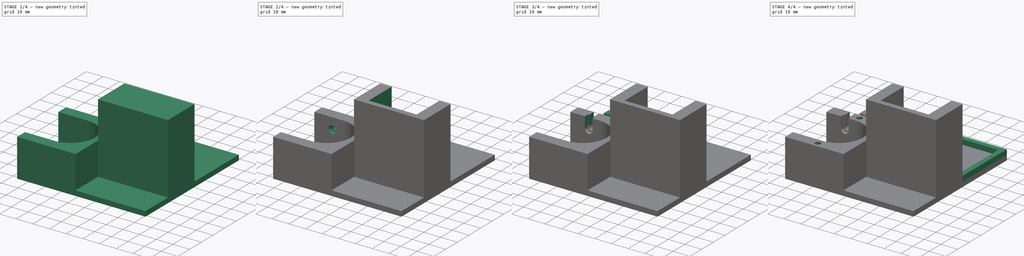
[diagram: build sequence overview — one tinted view per stage of 4, left to right]
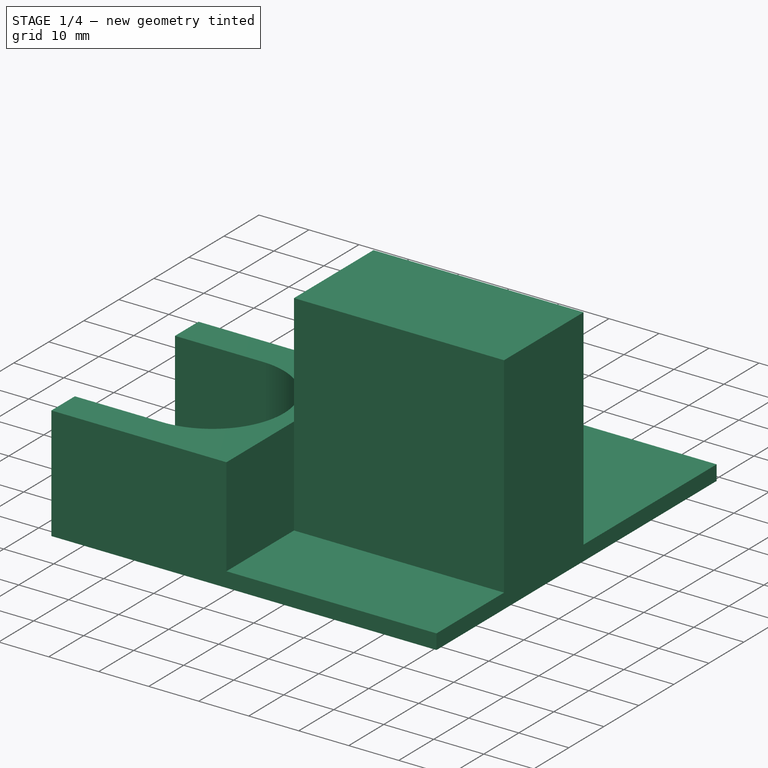
[diagram: stage 1 of 4 — iso view after this stage's code; geometry added in this stage tinted green]
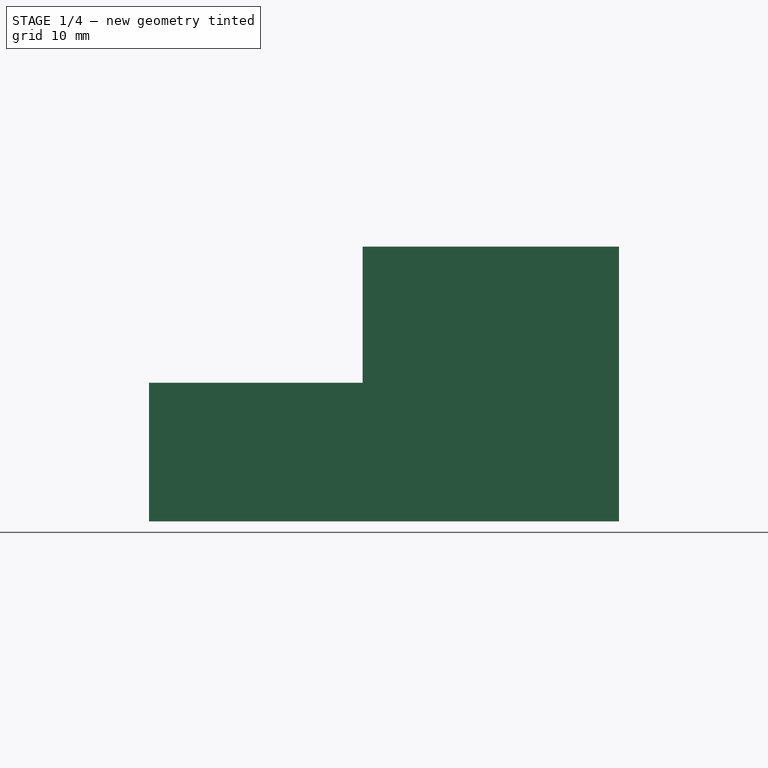
[diagram: stage 1 of 4 — front view after this stage's code; geometry added in this stage tinted green]
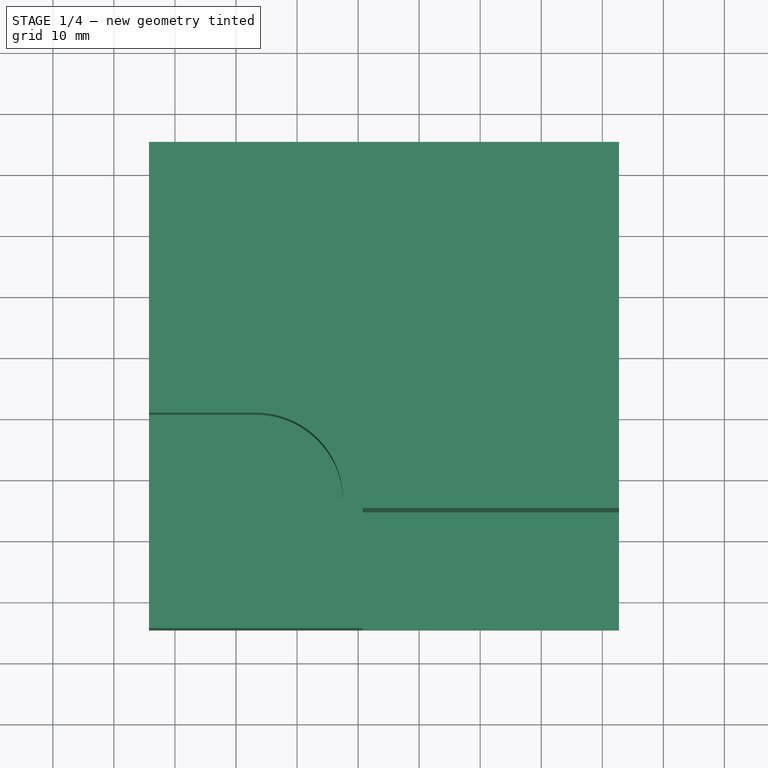
[diagram: stage 1 of 4 — top view after this stage's code; geometry added in this stage tinted green]
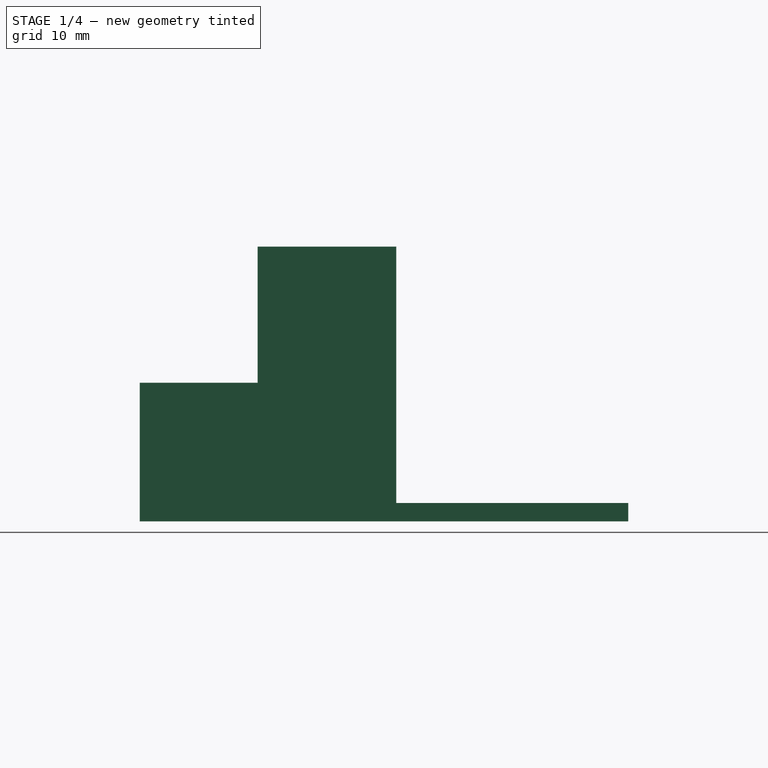
[diagram: stage 1 of 4 — right view after this stage's code; geometry added in this stage tinted green]
FCSTD DOCUMENT  (FreeCAD 0.15R4671 (Git))
Label: paper_sampler
License: All rights reserved
LicenseURL: http://en.wikipedia.org/wiki/All_rights_reserved
objects: Sketcher::SketchObject×15, PartDesign::Pocket×9, PartDesign::Pad×5
note: 43 computed .brp shape members not serialized (recipe doc carries the construction recipe); baked Part::Feature solids carry a one-line shape summary decoded from their .brp

FEATURE [Sketcher::SketchObject] Sketch
  sketch-geometry (4):
    g0: LineSegment StartX=-34.2578 StartY=45.4239 StartZ=0 EndX=42.7422 EndY=45.4239 EndZ=0
    g1: LineSegment StartX=42.7422 StartY=45.4239 StartZ=0 EndX=42.7422 EndY=-34.5761 EndZ=0
    g2: LineSegment StartX=42.7422 StartY=-34.5761 StartZ=0 EndX=-34.2578 EndY=-34.5761 EndZ=0
    g3: LineSegment StartX=-34.2578 StartY=-34.5761 StartZ=0 EndX=-34.2578 EndY=45.4239 EndZ=0
FEATURE [PartDesign::Pad] Pad
  Length = 3
  Length2 = 100
  Sketch = -> Sketch
  Type = 0
FEATURE [Sketcher::SketchObject] Sketch001
  ExternalGeometry = -> [Pad]
  Placement = pos=(0,0,3) rot=(0,0,1;0rad)
  Support = -> Pad [Face6]
  sketch-geometry (4):
    g0: LineSegment StartX=-34.2578 StartY=7.42394 StartZ=0 EndX=0.74216 EndY=7.42394 EndZ=0
    g1: LineSegment StartX=0.74216 StartY=7.42394 StartZ=0 EndX=0.74216 EndY=-34.5761 EndZ=0
    g2: LineSegment StartX=0.74216 StartY=-34.5761 StartZ=0 EndX=-34.2578 EndY=-34.5761 EndZ=0
    g3: LineSegment StartX=-34.2578 StartY=-34.5761 StartZ=0 EndX=-34.2578 EndY=7.42394 EndZ=0
  constraints (12):
    c: Coincident(g0,g1)
    c: Coincident(g1,g2)
    c: Coincident(g2,g3)
    c: Coincident(g3,g0)
    c: Horizontal(g0)
    c: Horizontal(g2)
    c: Vertical(g1)
    c: Vertical(g3)
    c: PointOnObject(g0,g-3)
    c: PointOnObject(g1,g-4)
    c: Distance(g0) = 35
    c: Distance(g1) = 42
FEATURE [PartDesign::Pad] Pad001
  Length = 19.7
  Length2 = 100
  Sketch = -> Sketch001
  Type = 0
FEATURE [Sketcher::SketchObject] Sketch002
  ExternalGeometry = -> [Pad001]
  Placement = pos=(0,0,22.7) rot=(0,0,1;0rad)
  Support = -> Pad001 [Face11]
  sketch-geometry (8):
    g0: LineSegment [constr] StartX=-34.2578 StartY=-13.5761 StartZ=0 EndX=0.74216 EndY=-13.5761 EndZ=0
    g1: LineSegment [constr] StartX=-16.7578 StartY=7.42394 StartZ=0 EndX=-16.7578 EndY=-34.5761 EndZ=0
    g2: GeomPoint [constr] X=-16.7578 Y=-13.5761 Z=0
    g3: Circle [constr] CenterX=-16.7578 CenterY=-13.5761 CenterZ=0 NormalX=0 NormalY=0 NormalZ=1 Radius=14.3
    g4: ArcOfCircle CenterX=-16.7578 CenterY=-13.5761 CenterZ=0 NormalX=0 NormalY=0 NormalZ=1 Radius=14.3 StartAngle=4.71239 EndAngle=7.85398
    g5: LineSegment StartX=-16.7578 StartY=0.723944 StartZ=0 EndX=-34.2578 EndY=0.723944 EndZ=0
    g6: LineSegment StartX=-16.7578 StartY=-27.8761 StartZ=0 EndX=-34.2578 EndY=-27.8761 EndZ=0
    g7: LineSegment StartX=-34.2578 StartY=-27.8761 StartZ=0 EndX=-34.2578 EndY=0.723944 EndZ=0
  constraints (24):
    c: Horizontal(g0)
    c: Vertical(g1)
    c: PointOnObject(g2,g1)
    c: PointOnObject(g2,g0)
    c: Coincident(g3,g2)
    c: Radius(g3) = 14.3
    c: Coincident(g4,g2)
    c: PointOnObject(g4,g3)
    c: PointOnObject(g4,g1)
    c: PointOnObject(g4,g1)
    c: Coincident(g5,g4)
    c: Horizontal(g5)
    c: Coincident(g6,g4)
    c: Tangent(g6,g3)
    c: Coincident(g7,g6)
    c: Coincident(g7,g5)
    c: PointOnObject(g1,g-6)
    c: PointOnObject(g1,g-3)
    c: Symmetric(g-5,g-4,g1)
    c: PointOnObject(g0,g-5)
    c: PointOnObject(g0,g-4)
    c: Symmetric(g-5,g-6,g0)
    c: PointOnObject(g5,g-5)
    c: PointOnObject(g6,g-5)
FEATURE [PartDesign::Pocket] Pocket
  Length = 19.7
  Sketch = -> Sketch002
  Type = 0
FEATURE [Sketcher::SketchObject] Sketch003
  ExternalGeometry = -> [Pocket]
  Placement = pos=(0,0,3) rot=(0,0,1;0rad)
  Support = -> Pocket [Face5]
  sketch-geometry (4):
    g0: LineSegment StartX=0.74216 StartY=7.42394 StartZ=0 EndX=42.7422 EndY=7.42394 EndZ=0
    g1: LineSegment StartX=42.7422 StartY=7.42394 StartZ=0 EndX=42.7422 EndY=-15.2761 EndZ=0
    g2: LineSegment StartX=42.7422 StartY=-15.2761 StartZ=0 EndX=0.74216 EndY=-15.2761 EndZ=0
    g3: LineSegment StartX=0.74216 StartY=-15.2761 StartZ=0 EndX=0.74216 EndY=7.42394 EndZ=0
  constraints (11):
    c: Coincident(g0,g1)
    c: Coincident(g1,g2)
    c: Coincident(g2,g3)
    c: Coincident(g3,g0)
    c: Horizontal(g0)
    c: Horizontal(g2)
    c: Vertical(g1)
    c: Vertical(g3)
    c: Coincident(g0,g-3)
    c: PointOnObject(g1,g-4)
    c: Distance(g0,g1) = 22.7
FEATURE [PartDesign::Pad] Pad002
  Length = 42
  Length2 = 100
  Sketch = -> Sketch003
  Type = 0
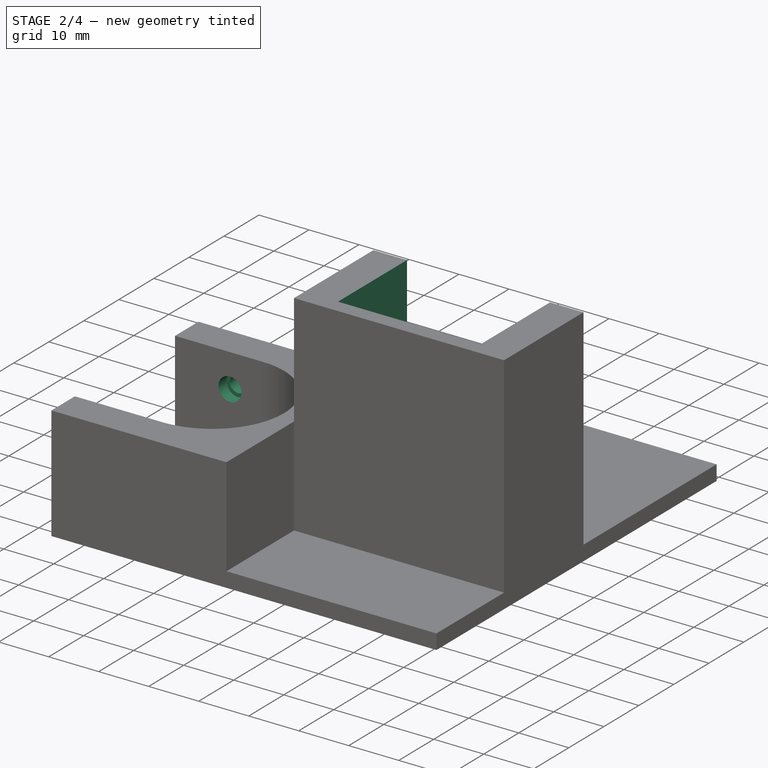
[diagram: stage 2 of 4 — iso view after this stage's code; geometry added in this stage tinted green]
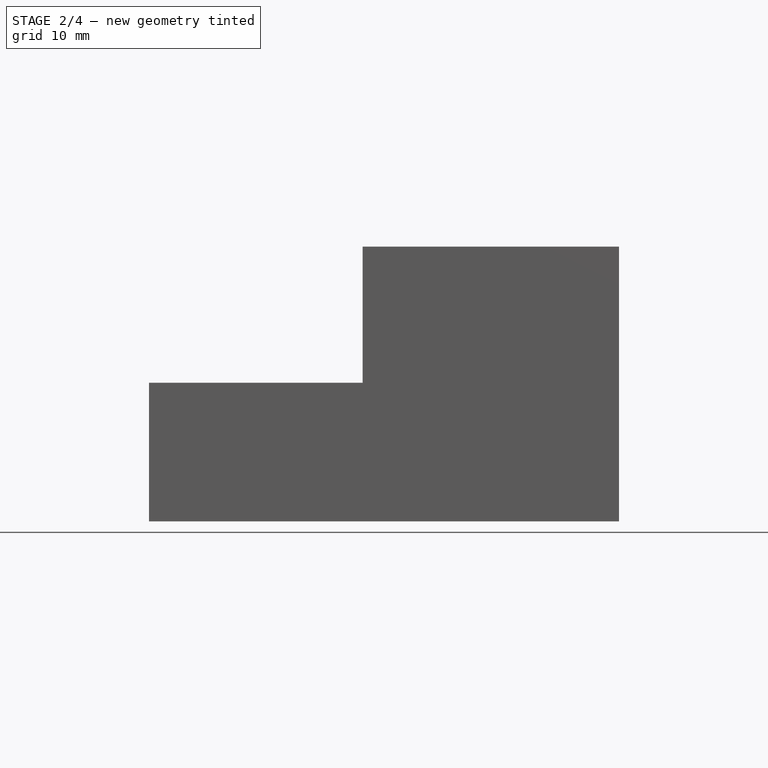
[diagram: stage 2 of 4 — front view after this stage's code; geometry added in this stage tinted green]
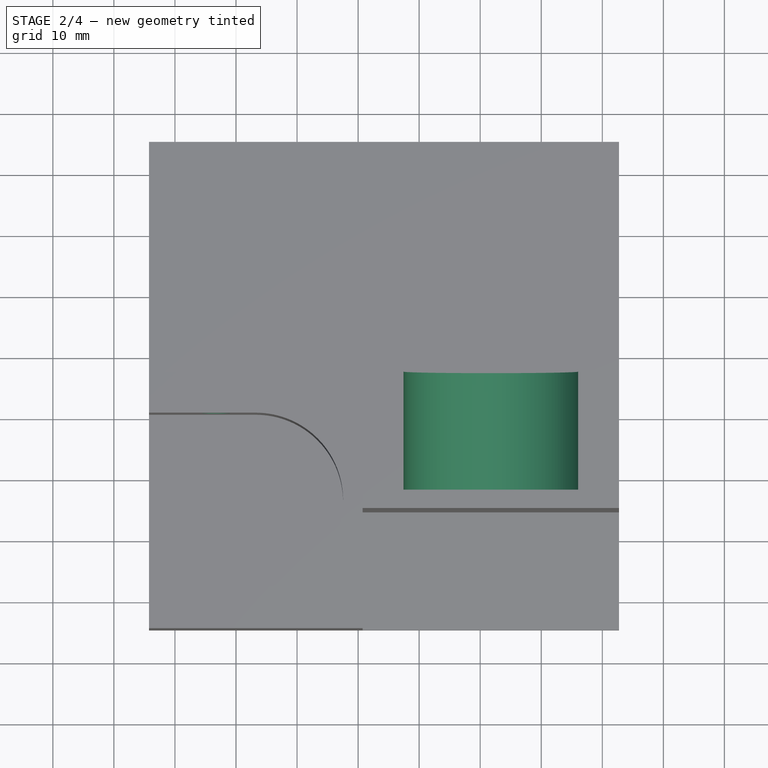
[diagram: stage 2 of 4 — top view after this stage's code; geometry added in this stage tinted green]
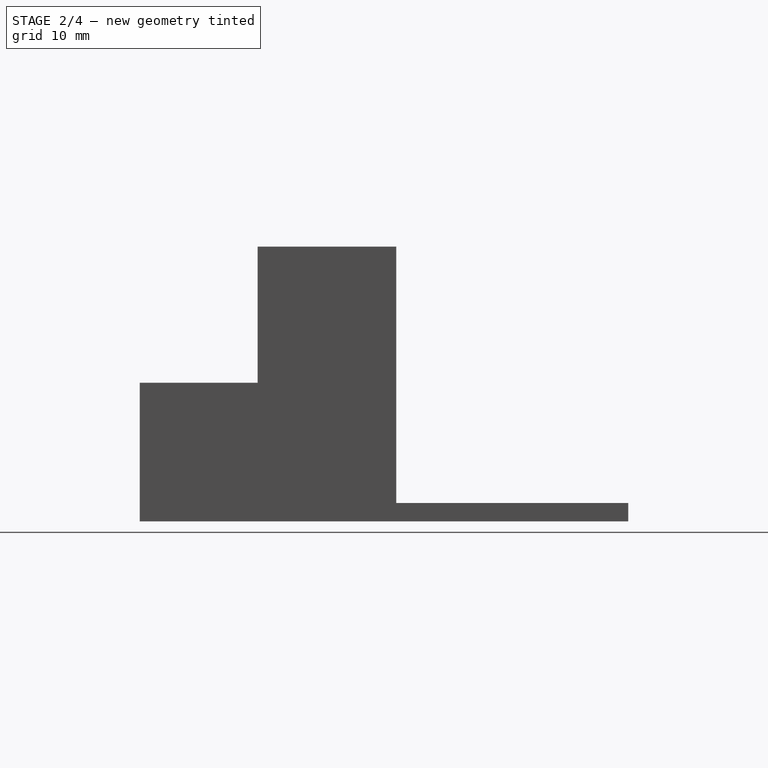
[diagram: stage 2 of 4 — right view after this stage's code; geometry added in this stage tinted green]
FEATURE [Sketcher::SketchObject] Sketch004
  ExternalGeometry = -> [Pad002]
  Placement = pos=(0,7.42394,0) rot=(0,0.707107,0.707107;3.14159rad)
  Support = -> Pad002 [Face12]
  sketch-geometry (7):
    g0: LineSegment [constr] StartX=-21.7422 StartY=45 StartZ=0 EndX=-21.7422 EndY=3 EndZ=0
    g1: LineSegment [constr] StartX=-42.7422 StartY=24 StartZ=0 EndX=-0.74216 EndY=24 EndZ=0
    g2: GeomPoint [constr] X=-21.7422 Y=24 Z=0
    g3: ArcOfCircle CenterX=-21.7422 CenterY=24 CenterZ=0 NormalX=0 NormalY=0 NormalZ=1 Radius=14.3 StartAngle=3.14159 EndAngle=6.28319
    g4: LineSegment StartX=-36.0422 StartY=24 StartZ=0 EndX=-36.0422 EndY=45 EndZ=0
    g5: LineSegment StartX=-7.44216 StartY=24 StartZ=0 EndX=-7.44216 EndY=45 EndZ=0
    g6: LineSegment StartX=-36.0422 StartY=45 StartZ=0 EndX=-7.44216 EndY=45 EndZ=0
  constraints (25):
    c: PointOnObject(g0,g-3)
    c: PointOnObject(g0,g-5)
    c: Vertical(g0)
    c: PointOnObject(g1,g-4)
    c: PointOnObject(g1,g-6)
    c: Horizontal(g1)
    c: Symmetric(g-3,g-4,g0)
    c: Symmetric(g-4,g-5,g1)
    c: PointOnObject(g2,g0)
    c: PointOnObject(g2,g1)
    c: PointOnObject(g3,g1)
    c: PointOnObject(g3,g1)
    c: Radius(g3) = 14.3
    c: Coincident(g3,g2)
    c: Coincident(g4,g3)
    c: PointOnObject(g4,g-3)
    c: Vertical(g4)
    c: PointOnObject(g5,g1)
    c: PointOnObject(g5,g-3)
    c: Vertical(g5)
    c: Coincident(g5,g3)
    c: PointOnObject(g6,g-3)
    c: PointOnObject(g6,g-3)
    c: Coincident(g6,g5)
    c: Coincident(g6,g4)
FEATURE [PartDesign::Pocket] Pocket001
  Length = 19.7
  Sketch = -> Sketch004
  Type = 0
FEATURE [Sketcher::SketchObject] Sketch005
  ExternalGeometry = -> [Pocket001]
  Placement = pos=(0,7.42394,0) rot=(0,0.707107,0.707107;3.14159rad)
  Support = -> Pocket001 [Face13]
  sketch-geometry (1):
    g0: Circle CenterX=15.6153 CenterY=16 CenterZ=0 NormalX=0 NormalY=0 NormalZ=1 Radius=2
  constraints (2):
    c: Radius(g0) = 2
    c: DistanceY(g0,g-4) = -13
FEATURE [Sketcher::SketchObject] Sketch006
  ExternalGeometry = -> [Pocket001]
  Placement = pos=(0,7.42394,0) rot=(0,0.707107,0.707107;3.14159rad)
  Support = -> Pocket001 [Face13]
  sketch-geometry (2):
    g0: LineSegment [constr] StartX=23.2578 StartY=3 StartZ=0 EndX=23.2578 EndY=16 EndZ=0
    g1: Circle CenterX=23.2578 CenterY=16 CenterZ=0 NormalX=0 NormalY=0 NormalZ=1 Radius=1.6
  constraints (6):
    c: PointOnObject(g0,g-3)
    c: Vertical(g0)
    c: Distance(g0) = 13
    c: Coincident(g1,g0)
    c: Radius(g1) = 1.6
    c: DistanceX(g0,g-3) = 11
FEATURE [PartDesign::Pocket] Pocket002
  Length = 8
  Sketch = -> Sketch006
  Type = 0
FEATURE [Sketcher::SketchObject] Sketch007
  ExternalGeometry = -> [Pocket002]
  Placement = pos=(0,0.723944,0) rot=(1,0,0;1.5708rad)
  Support = -> Pocket002 [Face18]
  sketch-geometry (1):
    g0: Circle CenterX=-23.2578 CenterY=16 CenterZ=0 NormalX=0 NormalY=0 NormalZ=1 Radius=2.3
  constraints (2):
    c: Coincident(g0,g-3)
    c: Radius(g0) = 2.3
FEATURE [PartDesign::Pocket] Pocket003
  Length = 2.3
  Sketch = -> Sketch007
  Type = 0
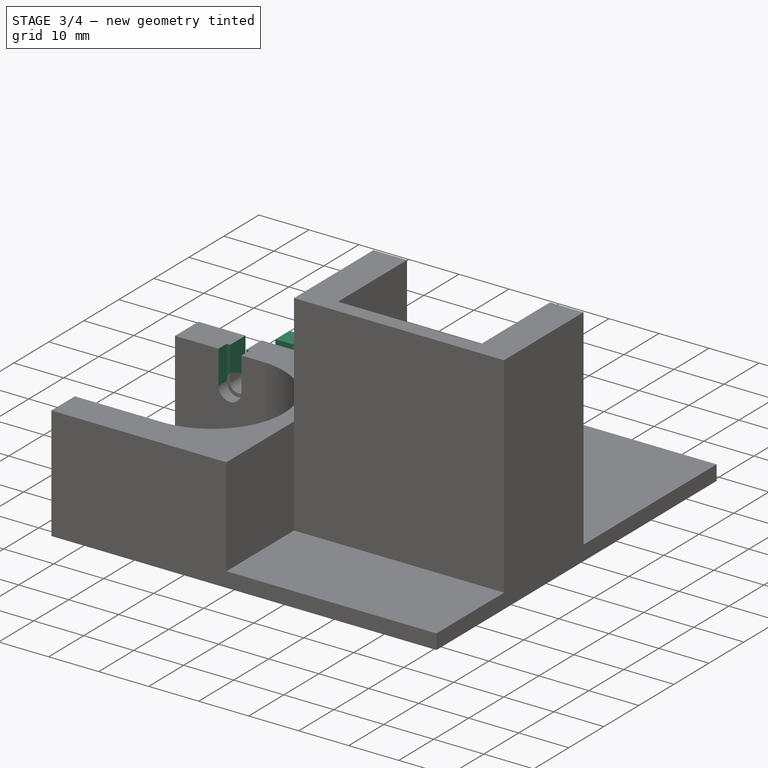
[diagram: stage 3 of 4 — iso view after this stage's code; geometry added in this stage tinted green]
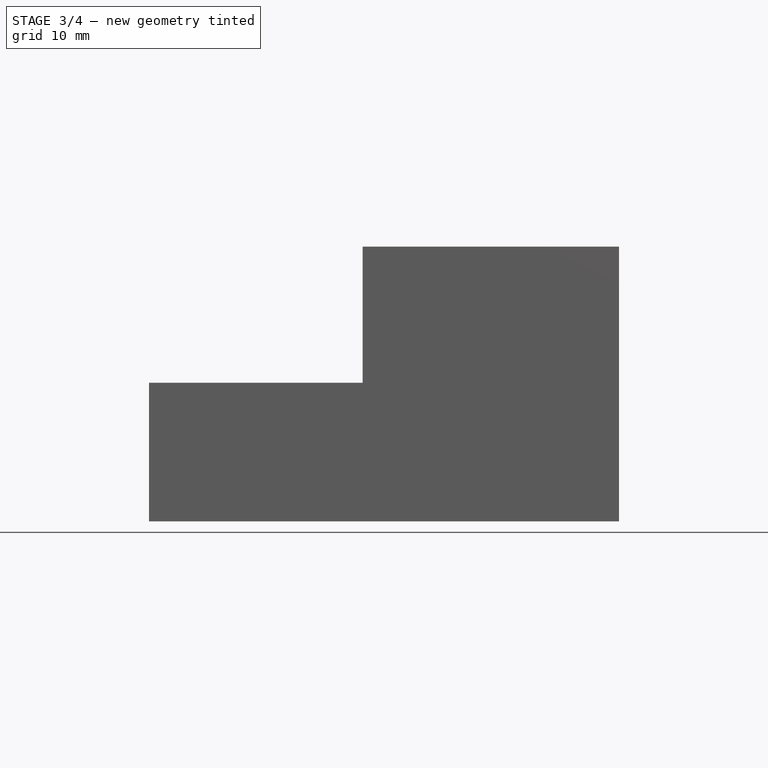
[diagram: stage 3 of 4 — front view after this stage's code; geometry added in this stage tinted green]
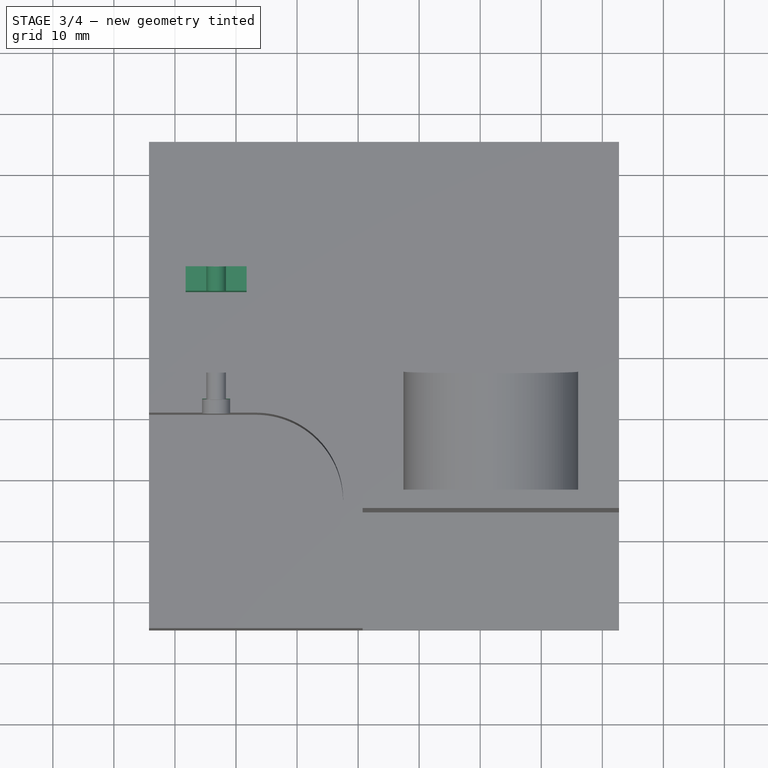
[diagram: stage 3 of 4 — top view after this stage's code; geometry added in this stage tinted green]
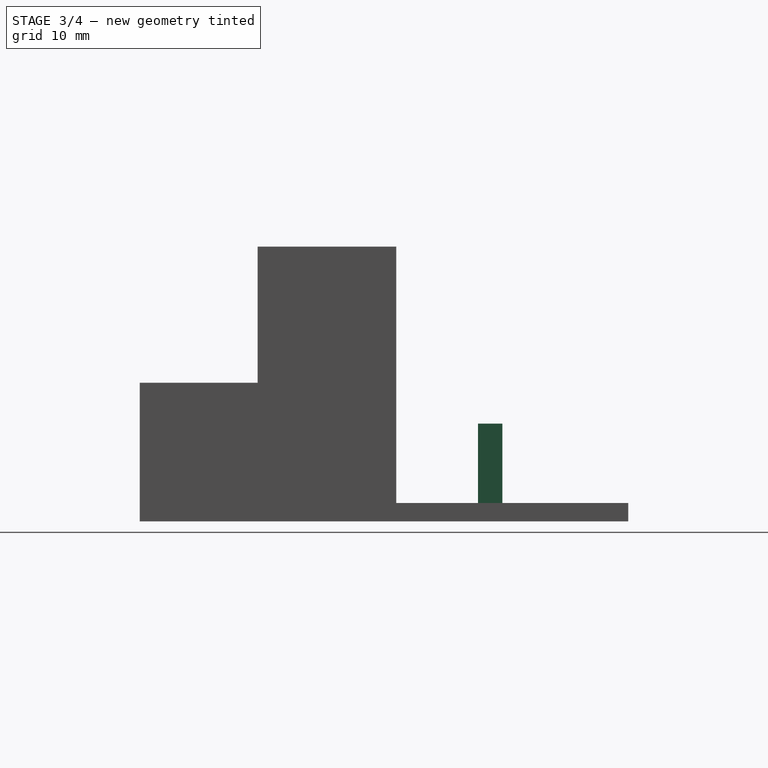
[diagram: stage 3 of 4 — right view after this stage's code; geometry added in this stage tinted green]
FEATURE [Sketcher::SketchObject] Sketch008
  ExternalGeometry = -> [Pocket003]
  Placement = pos=(0,0,3) rot=(0,0,1;0rad)
  Support = -> Pocket003 [Face5]
  sketch-geometry (4):
    g0: LineSegment StartX=-28.2578 StartY=24.8239 StartZ=0 EndX=-18.2578 EndY=24.8239 EndZ=0
    g1: LineSegment StartX=-18.2578 StartY=24.8239 StartZ=0 EndX=-18.2578 EndY=20.8239 EndZ=0
    g2: LineSegment StartX=-18.2578 StartY=20.8239 StartZ=0 EndX=-28.2578 EndY=20.8239 EndZ=0
    g3: LineSegment StartX=-28.2578 StartY=20.8239 StartZ=0 EndX=-28.2578 EndY=24.8239 EndZ=0
  constraints (12):
    c: Coincident(g0,g1)
    c: Coincident(g1,g2)
    c: Coincident(g2,g3)
    c: Coincident(g3,g0)
    c: Horizontal(g0)
    c: Horizontal(g2)
    c: Vertical(g1)
    c: Vertical(g3)
    c: DistanceY(g2,g-4) = -13.4
    c: Distance(g3) = 4
    c: DistanceX(g2,g-4) = -6
    c: Distance(g2) = 10
FEATURE [PartDesign::Pad] Pad003
  Length = 13
  Length2 = 100
  Sketch = -> Sketch008
  Type = 0
FEATURE [Sketcher::SketchObject] Sketch009
  ExternalGeometry = -> [Pad003]
  Placement = pos=(0,24.8239,0) rot=(0,0.707107,0.707107;3.14159rad)
  Support = -> Pad003 [Face17]
  sketch-geometry (2):
    g0: ArcOfCircle CenterX=23.2578 CenterY=16 CenterZ=0 NormalX=0 NormalY=0 NormalZ=1 Radius=1.6 StartAngle=3.14159 EndAngle=6.28319
    g1: LineSegment StartX=21.6578 StartY=16 StartZ=0 EndX=24.8578 EndY=16 EndZ=0
  constraints (7):
    c: PointOnObject(g0,g-3)
    c: PointOnObject(g0,g-3)
    c: PointOnObject(g0,g-3)
    c: Distance(g0,g-3) = 5
    c: Radius(g0) = 1.6
    c: Coincident(g1,g0)
    c: Coincident(g1,g0)
FEATURE [PartDesign::Pocket] Pocket004
  Length = 4
  Sketch = -> Sketch009
  Type = 0
FEATURE [Sketcher::SketchObject] Sketch010
  ExternalGeometry = -> [Pocket004]
  Placement = pos=(0,0,22.7) rot=(0,0,1;0rad)
  Support = -> Pocket004 [Face20]
  sketch-geometry (8):
    g0: LineSegment StartX=-24.8578 StartY=7.42394 StartZ=0 EndX=-21.6578 EndY=7.42394 EndZ=0
    g1: LineSegment StartX=-21.6578 StartY=7.42394 StartZ=0 EndX=-21.6578 EndY=3.02394 EndZ=0
    g2: LineSegment StartX=-21.6578 StartY=3.02394 StartZ=0 EndX=-20.9578 EndY=3.02394 EndZ=0
    g3: LineSegment StartX=-20.9578 StartY=3.02394 StartZ=0 EndX=-20.9578 EndY=0.723944 EndZ=0
    g4: LineSegment StartX=-20.9578 StartY=0.723944 StartZ=0 EndX=-25.5578 EndY=0.723944 EndZ=0
    g5: LineSegment StartX=-25.5578 StartY=0.723944 StartZ=0 EndX=-25.5578 EndY=3.02394 EndZ=0
    g6: LineSegment StartX=-25.5578 StartY=3.02394 StartZ=0 EndX=-24.8578 EndY=3.02394 EndZ=0
    g7: LineSegment StartX=-24.8578 StartY=3.02394 StartZ=0 EndX=-24.8578 EndY=7.42394 EndZ=0
  constraints (24):
    c: PointOnObject(g0,g-4)
    c: PointOnObject(g0,g-4)
    c: Coincident(g0,g1)
    c: Vertical(g1)
    c: Coincident(g1,g2)
    c: Horizontal(g2)
    c: Coincident(g2,g3)
    c: PointOnObject(g3,g-5)
    c: Vertical(g3)
    c: Coincident(g3,g4)
    c: PointOnObject(g4,g-5)
    c: Coincident(g4,g5)
    c: Vertical(g5)
    c: Coincident(g5,g6)
    c: Horizontal(g6)
    c: Coincident(g6,g7)
    c: Coincident(g7,g0)
    c: Vertical(g7)
    c: Distance(g0,g0) = 3.2
    c: Equal(g1,g7)
    c: Equal(g6,g2)
    c: Distance(g5) = 2.3
    c: Distance(g4,g3) = 4.6
    c: Distance(g0,g-4) = 9.4
FEATURE [PartDesign::Pocket] Pocket005
  Length = 6.7
  Sketch = -> Sketch010
  Type = 0
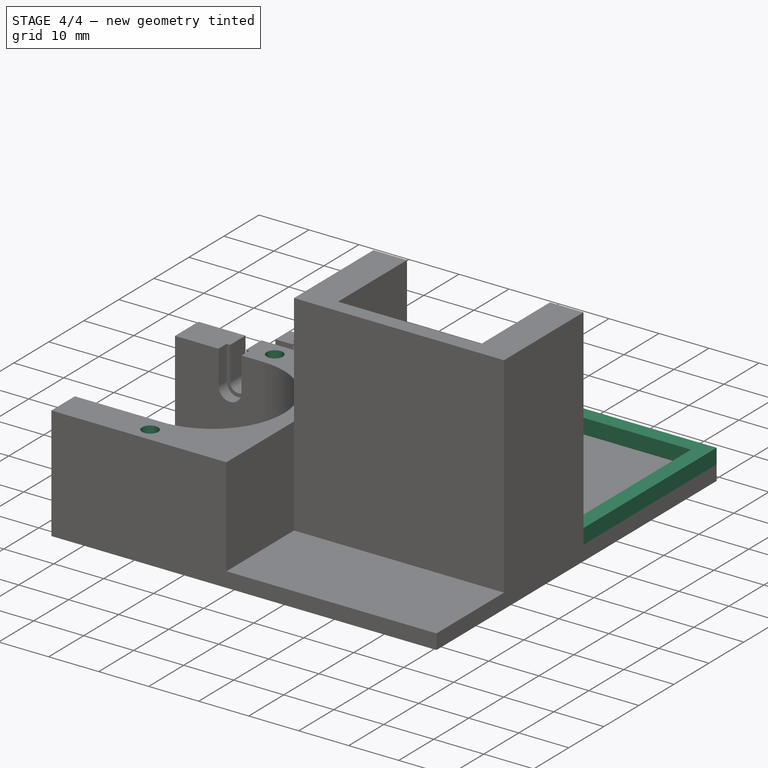
[diagram: stage 4 of 4 — iso view after this stage's code; geometry added in this stage tinted green]
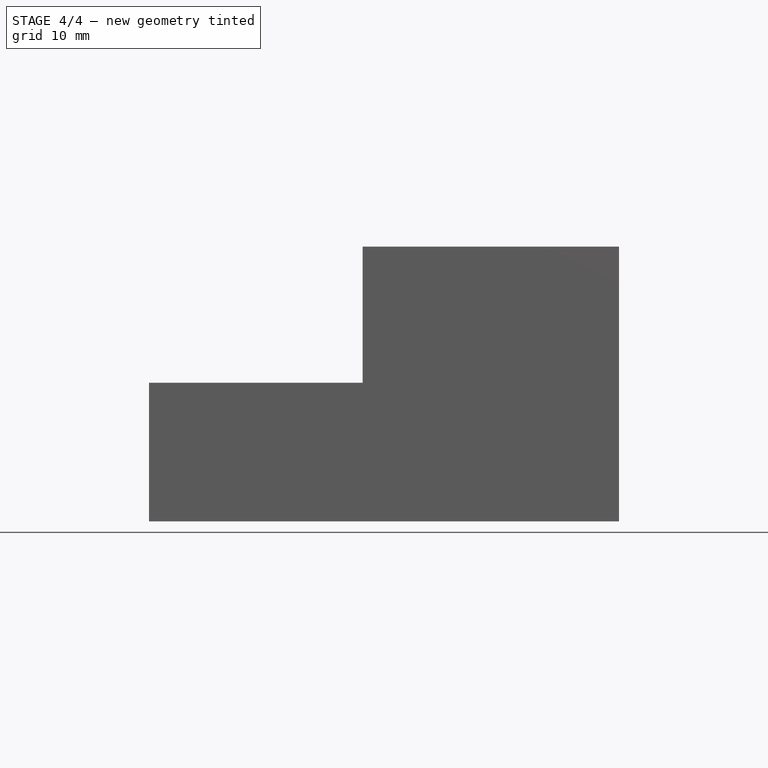
[diagram: stage 4 of 4 — front view after this stage's code; geometry added in this stage tinted green]
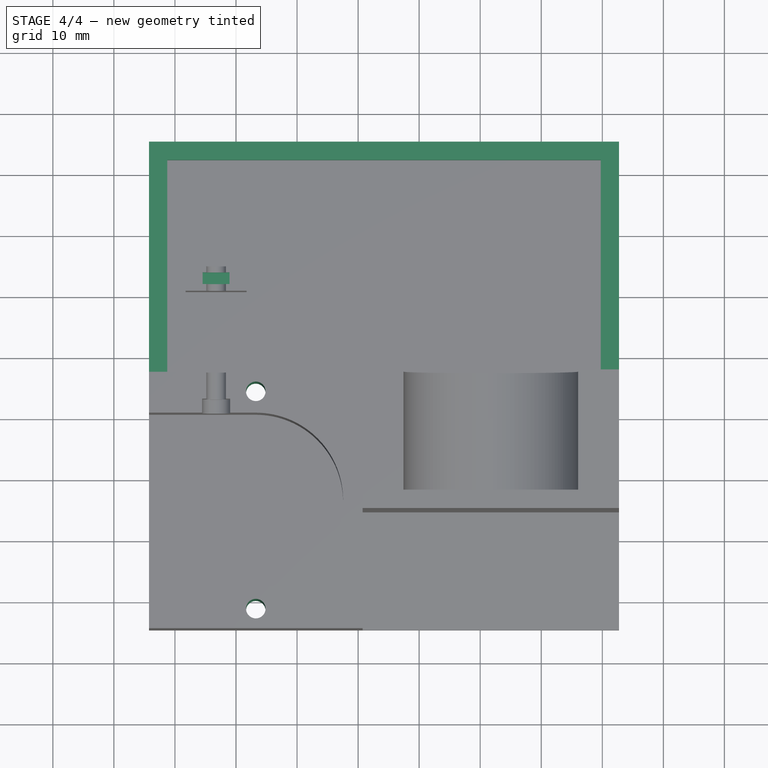
[diagram: stage 4 of 4 — top view after this stage's code; geometry added in this stage tinted green]
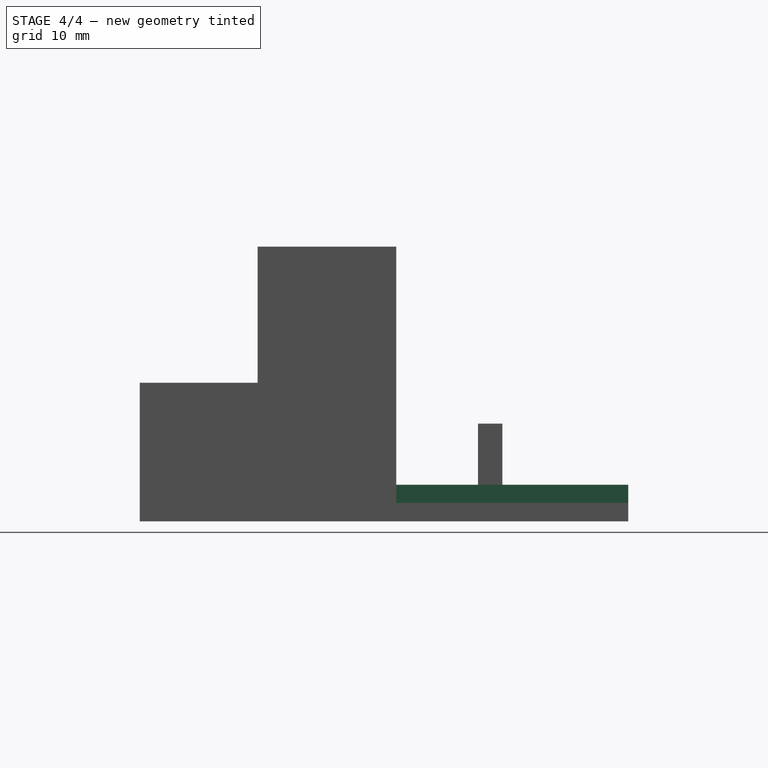
[diagram: stage 4 of 4 — right view after this stage's code; geometry added in this stage tinted green]
FEATURE [Sketcher::SketchObject] Sketch011
  ExternalGeometry = -> [Pocket005]
  Placement = pos=(0,0,16) rot=(0,0,1;0rad)
  Support = -> Pocket005 [Face36]
  sketch-geometry (4):
    g0: LineSegment StartX=-25.4578 StartY=23.8239 StartZ=0 EndX=-21.0578 EndY=23.8239 EndZ=0
    g1: LineSegment StartX=-21.0578 StartY=23.8239 StartZ=0 EndX=-21.0578 EndY=21.9239 EndZ=0
    g2: LineSegment StartX=-21.0578 StartY=21.9239 StartZ=0 EndX=-25.4578 EndY=21.9239 EndZ=0
    g3: LineSegment StartX=-25.4578 StartY=21.9239 StartZ=0 EndX=-25.4578 EndY=23.8239 EndZ=0
  constraints (12):
    c: Coincident(g0,g1)
    c: Coincident(g1,g2)
    c: Coincident(g2,g3)
    c: Coincident(g3,g0)
    c: Horizontal(g0)
    c: Horizontal(g2)
    c: Vertical(g1)
    c: Vertical(g3)
    c: Distance(g3) = 1.9
    c: Distance(g0) = 4.4
    c: DistanceX(g0,g-3) = -2.8
    c: DistanceY(g0,g-3) = 1
FEATURE [PartDesign::Pocket] Pocket006
  Length = 2.5
  Sketch = -> Sketch011
  Type = 0
FEATURE [Sketcher::SketchObject] Sketch012
  ExternalGeometry = -> [Pocket006]
  Placement = pos=(0,0,22.7) rot=(0,0,1;0rad)
  Support = -> Pocket006 [Face20]
  sketch-geometry (3):
    g0: LineSegment [constr] StartX=-16.7578 StartY=-13.5761 StartZ=0 EndX=-16.7578 EndY=-31.3761 EndZ=0
    g1: Circle CenterX=-16.7578 CenterY=-31.3761 CenterZ=0 NormalX=0 NormalY=0 NormalZ=1 Radius=1.6
    g2: Circle CenterX=-16.7578 CenterY=4.22394 CenterZ=0 NormalX=0 NormalY=0 NormalZ=1 Radius=1.6
  constraints (8):
    c: Coincident(g0,g-3)
    c: Vertical(g0)
    c: Coincident(g1,g0)
    c: Radius(g1) = 1.6
    c: Distance(g0) = 17.8
    c: PointOnObject(g2,g0)
    c: Distance(g2,g0) = 17.8
    c: Radius(g2) = 1.6
FEATURE [PartDesign::Pocket] Pocket007
  Length = 5
  Sketch = -> Sketch012
  Type = 1
FEATURE [Sketcher::SketchObject] Sketch013
  ExternalGeometry = -> [Pocket007]
  Placement = pos=(0,0,3) rot=(0,0,1;0rad)
  Support = -> Pocket007 [Face5]
  sketch-geometry (8):
    g0: LineSegment StartX=-34.2578 StartY=7.42394 StartZ=0 EndX=-34.2578 EndY=45.4239 EndZ=0
    g1: LineSegment StartX=-34.2578 StartY=45.4239 StartZ=0 EndX=42.7422 EndY=45.4239 EndZ=0
    g2: LineSegment StartX=42.7422 StartY=45.4239 StartZ=0 EndX=42.7422 EndY=7.42394 EndZ=0
    g3: LineSegment StartX=42.7422 StartY=7.42394 StartZ=0 EndX=39.7422 EndY=7.42394 EndZ=0
    g4: LineSegment StartX=39.7422 StartY=7.42394 StartZ=0 EndX=39.7422 EndY=42.4239 EndZ=0
    g5: LineSegment StartX=39.7422 StartY=42.4239 StartZ=0 EndX=-31.2578 EndY=42.4239 EndZ=0
    g6: LineSegment StartX=-31.2578 StartY=42.4239 StartZ=0 EndX=-31.2578 EndY=7.42394 EndZ=0
    g7: LineSegment StartX=-31.2578 StartY=7.42394 StartZ=0 EndX=-34.2578 EndY=7.42394 EndZ=0
  constraints (20):
    c: Coincident(g-5,g0)
    c: Coincident(g0,g-5)
    c: Coincident(g0,g1)
    c: Coincident(g1,g-4)
    c: Coincident(g1,g2)
    c: Coincident(g2,g-3)
    c: Coincident(g2,g3)
    c: Horizontal(g3)
    c: Coincident(g3,g4)
    c: Vertical(g4)
    c: Coincident(g4,g5)
    c: Horizontal(g5)
    c: Coincident(g5,g6)
    c: Vertical(g6)
    c: Coincident(g6,g7)
    c: Coincident(g7,g0)
    c: Horizontal(g7)
    c: DistanceY(g5,g0) = 3
    c: DistanceX(g5,g0) = -3
    c: DistanceX(g4,g1) = 3
FEATURE [PartDesign::Pad] Pad004
  Length = 3
  Length2 = 100
  Sketch = -> Sketch013
  Type = 0
FEATURE [Sketcher::SketchObject] Sketch014
  ExternalGeometry = -> [Pad004]
  Placement = pos=(0,0,0) rot=(1,0,0;3.14159rad)
  Support = -> Pad004 [Face1]
  sketch-geometry (2):
    g0: Circle CenterX=-16.7578 CenterY=31.3761 CenterZ=0 NormalX=0 NormalY=0 NormalZ=1 Radius=2.3
    g1: Circle CenterX=-16.7578 CenterY=-4.22394 CenterZ=0 NormalX=0 NormalY=0 NormalZ=1 Radius=2.3
  constraints (4):
    c: Coincident(g0,g-4)
    c: Coincident(g1,g-3)
    c: Radius(g1) = 2.3
    c: Radius(g0) = 2.3
FEATURE [PartDesign::Pocket] Pocket008
  Length = 2.3
  Sketch = -> Sketch014
  Type = 0
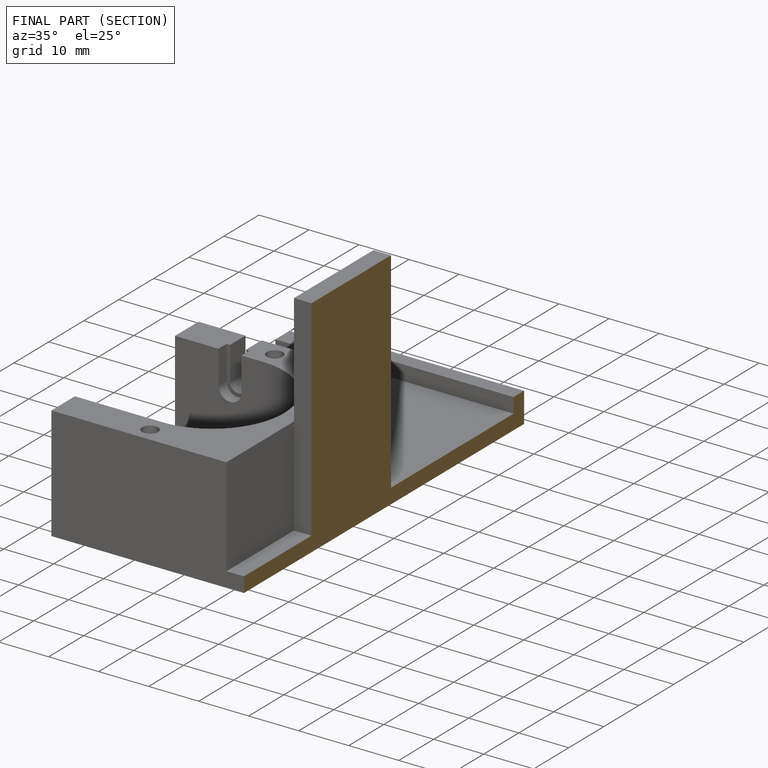
[diagram: finished part — half-section view (interior)]
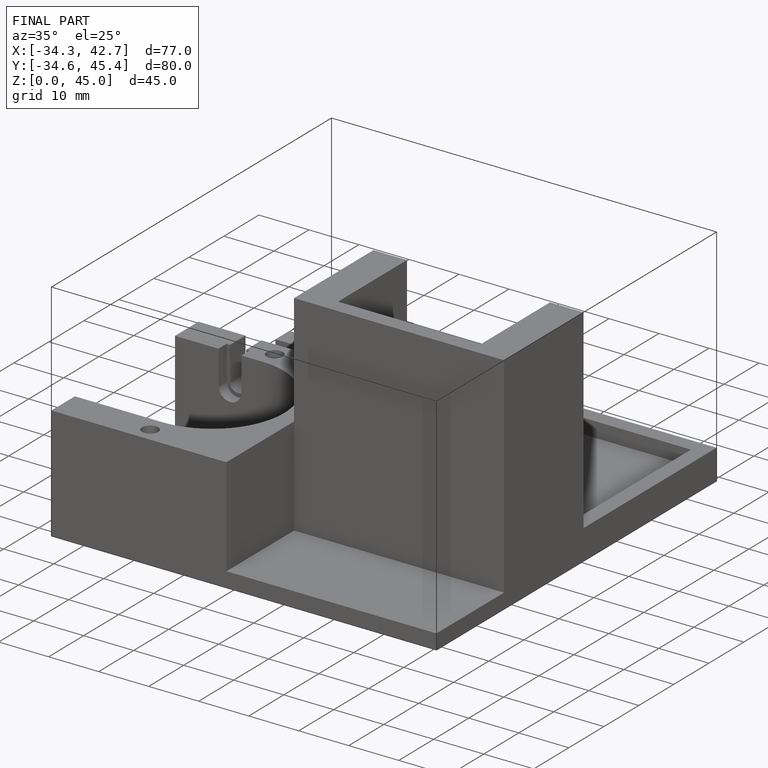
[diagram: finished part — iso view with bounding-box wireframe]
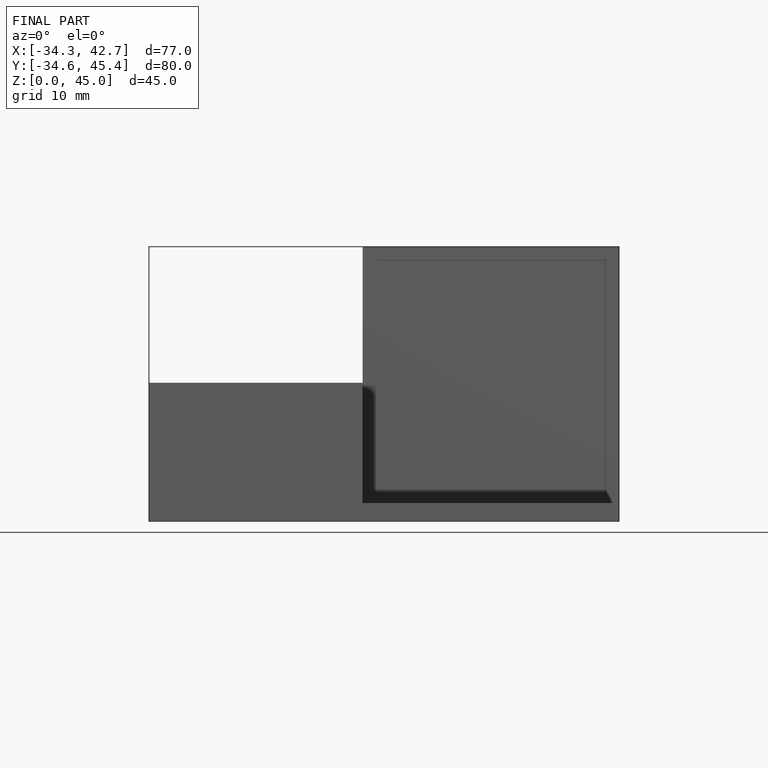
[diagram: finished part — front view with bounding-box wireframe]
